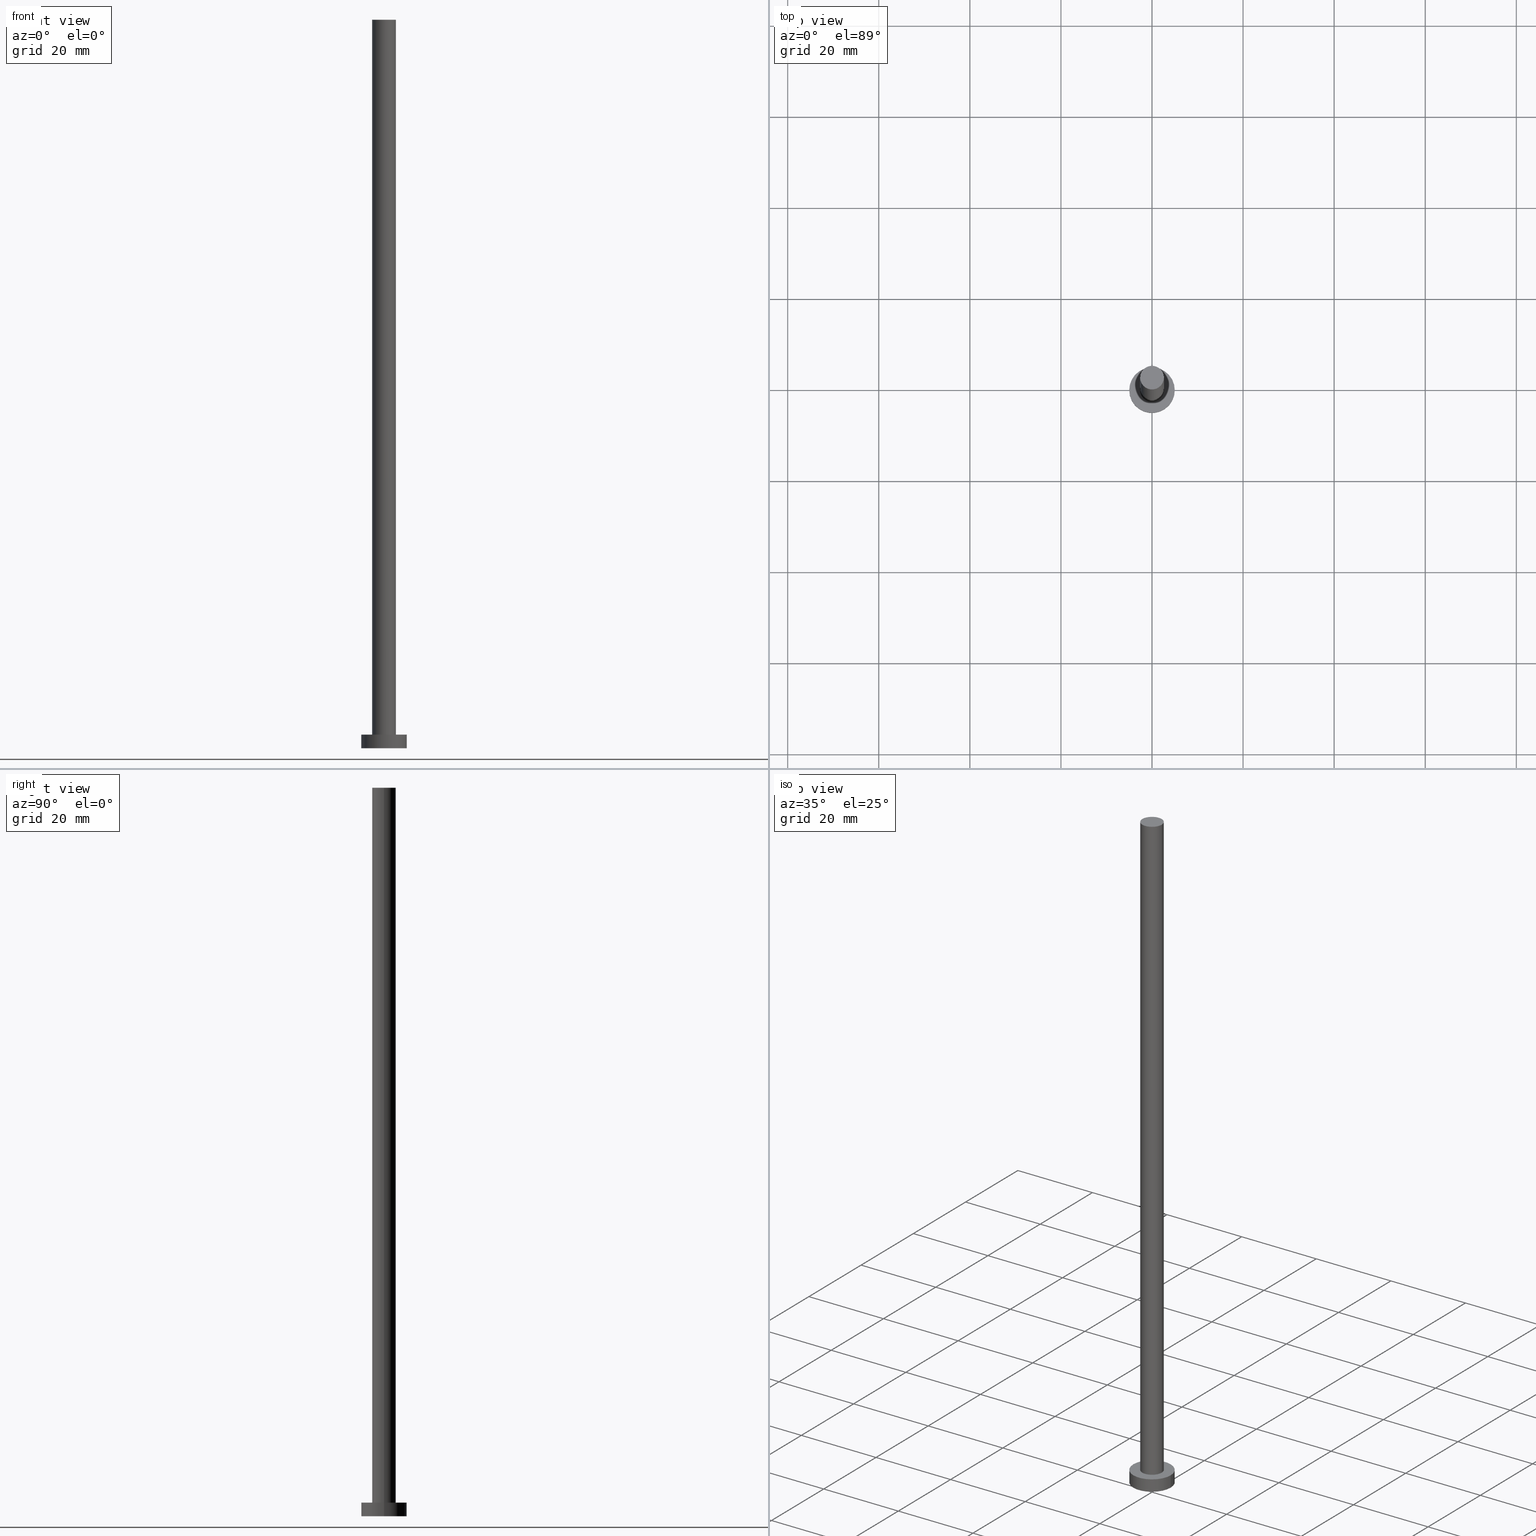
[diagram: canonical four-view strip — front | top / right | iso, engineering-drawing reading convention]
A machine part, canonical four-view strip (front | top / right | iso — engineering-drawing reading convention). The complete STEP part file that produces these views, byte-faithful:
ISO-10303-21;
HEADER;
FILE_DESCRIPTION (( 'STEP AP203' ),
    '1' );
FILE_NAME ('fc25.STEP',
    '2023-02-13T14:35:40',
    ( '' ),
    ( '' ),
    'SwSTEP 2.0',
    'SolidWorks 2019',
    '' );
FILE_SCHEMA (( 'CONFIG_CONTROL_DESIGN' ));
ENDSEC;

DATA;
#1 = PERSON_AND_ORGANIZATION_ROLE ( 'design_owner' ) ;
#2 = CARTESIAN_POINT ( 'NONE',  ( 0.000000000000000000, 0.000000000000000000, 0.000000000000000000 ) ) ;
#3 = ORIENTED_EDGE ( 'NONE', *, *, #229, .F. ) ;
#4 = DIRECTION ( 'NONE',  ( 1.000000000000000000, 0.000000000000000000, -0.000000000000000000 ) ) ;
#5 = ORIENTED_EDGE ( 'NONE', *, *, #202, .T. ) ;
#6 = UNCERTAINTY_MEASURE_WITH_UNIT (LENGTH_MEASURE( 1.000000000000000082E-05 ), #20, 'distance_accuracy_value', 'NONE');
#7 = PLANE ( 'NONE',  #103 ) ;
#8 = VERTEX_POINT ( 'NONE', #193 ) ;
#9 = APPROVAL_DATE_TIME ( #239, #188 ) ;
#10 = PERSON_AND_ORGANIZATION ( #29, #247 ) ;
#11 = AXIS2_PLACEMENT_3D ( 'NONE', #76, #141, #120 ) ;
#12 = CIRCLE ( 'NONE', #118, 5.000000000000000000 ) ;
#13 = PERSON_AND_ORGANIZATION_ROLE ( 'creator' ) ;
#14 = EDGE_CURVE ( 'NONE', #143, #19, #133, .T. ) ;
#15 = APPLICATION_PROTOCOL_DEFINITION ( 'international standard', 'config_control_design', 1994, #125 ) ;
#16 =( NAMED_UNIT ( * ) SI_UNIT ( $, .STERADIAN. ) SOLID_ANGLE_UNIT ( ) );
#17 = AXIS2_PLACEMENT_3D ( 'NONE', #28, #228, #213 ) ;
#18 = EDGE_LOOP ( 'NONE', ( #82, #58, #69, #230 ) ) ;
#19 = VERTEX_POINT ( 'NONE', #23 ) ;
#20 =( LENGTH_UNIT ( ) NAMED_UNIT ( * ) SI_UNIT ( .MILLI., .METRE. ) );
#21 = ADVANCED_FACE ( 'NONE', ( #70 ), #248, .T. ) ;
#22 = AXIS2_PLACEMENT_3D ( 'NONE', #246, #181, #233 ) ;
#23 = CARTESIAN_POINT ( 'NONE',  ( -2.600000000000000089, 0.000000000000000000, 160.0000000000000000 ) ) ;
#24 = CARTESIAN_POINT ( 'NONE',  ( -5.000000000000000000, 0.000000000000000000, 3.000000000000000000 ) ) ;
#25 = FACE_OUTER_BOUND ( 'NONE', #243, .T. ) ;
#26 = DIRECTION ( 'NONE',  ( 0.000000000000000000, 0.000000000000000000, 1.000000000000000000 ) ) ;
#27 = PERSON_AND_ORGANIZATION ( #29, #247 ) ;
#28 = CARTESIAN_POINT ( 'NONE',  ( 0.000000000000000000, 0.000000000000000000, 160.0000000000000000 ) ) ;
#29 = PERSON ( 'NEUR�EN�', 'NEUR�EN�', 'NEUR�EN�', ('NEUR�EN�'), ('NEUR�EN�'), ('NEUR�EN�') ) ;
#30 = AXIS2_PLACEMENT_3D ( 'NONE', #207, #105, #234 ) ;
#31 = APPROVAL_DATE_TIME ( #253, #138 ) ;
#32 = PERSON_AND_ORGANIZATION ( #29, #247 ) ;
#33 = EDGE_CURVE ( 'NONE', #19, #241, #67, .T. ) ;
#34 = AXIS2_PLACEMENT_3D ( 'NONE', #89, #128, #210 ) ;
#35 = DIRECTION ( 'NONE',  ( 0.000000000000000000, 0.000000000000000000, 1.000000000000000000 ) ) ;
#36 = CC_DESIGN_PERSON_AND_ORGANIZATION_ASSIGNMENT ( #32, #13, ( #115 ) ) ;
#37 = DIRECTION ( 'NONE',  ( 1.000000000000000000, 0.000000000000000000, 0.000000000000000000 ) ) ;
#38 = ORIENTED_EDGE ( 'NONE', *, *, #81, .F. ) ;
#39 = EDGE_LOOP ( 'NONE', ( #38, #3 ) ) ;
#40 = AXIS2_PLACEMENT_3D ( 'NONE', #250, #154, #46 ) ;
#41 = EDGE_LOOP ( 'NONE', ( #5, #140 ) ) ;
#42 = DIRECTION ( 'NONE',  ( -0.000000000000000000, -0.000000000000000000, -1.000000000000000000 ) ) ;
#43 = EDGE_LOOP ( 'NONE', ( #167, #226, #252, #223 ) ) ;
#44 = DIRECTION ( 'NONE',  ( 1.000000000000000000, 0.000000000000000000, 0.000000000000000000 ) ) ;
#45 = FACE_OUTER_BOUND ( 'NONE', #43, .T. ) ;
#46 = DIRECTION ( 'NONE',  ( 1.000000000000000000, 0.000000000000000000, -0.000000000000000000 ) ) ;
#47 = CARTESIAN_POINT ( 'NONE',  ( 0.000000000000000000, 0.000000000000000000, 3.000000000000000000 ) ) ;
#48 = APPROVAL_DATE_TIME ( #132, #91 ) ;
#49 = DATE_AND_TIME ( #212, #86 ) ;
#50 = APPROVAL_STATUS ( 'not_yet_approved' ) ;
#51 = APPLICATION_PROTOCOL_DEFINITION ( 'international standard', 'config_control_design', 1994, #139 ) ;
#52 = CC_DESIGN_PERSON_AND_ORGANIZATION_ASSIGNMENT ( #95, #74, ( #115 ) ) ;
#53 = ORIENTED_EDGE ( 'NONE', *, *, #172, .T. ) ;
#54 = AXIS2_PLACEMENT_3D ( 'NONE', #175, #219, #99 ) ;
#55 = ADVANCED_FACE ( 'NONE', ( #45 ), #88, .T. ) ;
#56 = DIRECTION ( 'NONE',  ( -0.000000000000000000, -0.000000000000000000, -1.000000000000000000 ) ) ;
#57 = VERTEX_POINT ( 'NONE', #232 ) ;
#58 = ORIENTED_EDGE ( 'NONE', *, *, #224, .F. ) ;
#59 = DIRECTION ( 'NONE',  ( 1.000000000000000000, 0.000000000000000000, 0.000000000000000000 ) ) ;
#60 = ORIENTED_EDGE ( 'NONE', *, *, #229, .T. ) ;
#61 = DIRECTION ( 'NONE',  ( 1.000000000000000000, 0.000000000000000000, 0.000000000000000000 ) ) ;
#62 = CC_DESIGN_SECURITY_CLASSIFICATION ( #186, ( #115 ) ) ;
#63 = ADVANCED_FACE ( 'NONE', ( #174, #25 ), #108, .T. ) ;
#64 = VERTEX_POINT ( 'NONE', #129 ) ;
#65 = EDGE_CURVE ( 'NONE', #64, #57, #12, .T. ) ;
#66 = APPROVAL_PERSON_ORGANIZATION ( #178, #91, #157 ) ;
#67 = LINE ( 'NONE', #134, #148 ) ;
#68 = CARTESIAN_POINT ( 'NONE',  ( 0.000000000000000000, 0.000000000000000000, 160.0000000000000000 ) ) ;
#69 = ORIENTED_EDGE ( 'NONE', *, *, #151, .T. ) ;
#70 = FACE_OUTER_BOUND ( 'NONE', #131, .T. ) ;
#71 = PERSON_AND_ORGANIZATION ( #29, #247 ) ;
#72 = COORDINATED_UNIVERSAL_TIME_OFFSET ( 1, 0, .AHEAD. ) ;
#73 = ADVANCED_FACE ( 'NONE', ( #195 ), #176, .T. ) ;
#74 = PERSON_AND_ORGANIZATION_ROLE ( 'design_supplier' ) ;
#75 = CIRCLE ( 'NONE', #96, 2.600000000000000089 ) ;
#76 = CARTESIAN_POINT ( 'NONE',  ( 0.000000000000000000, 0.000000000000000000, 160.0000000000000000 ) ) ;
#77 =( GEOMETRIC_REPRESENTATION_CONTEXT ( 3 ) GLOBAL_UNCERTAINTY_ASSIGNED_CONTEXT ( ( #6 ) ) GLOBAL_UNIT_ASSIGNED_CONTEXT ( ( #20, #122, #16 ) ) REPRESENTATION_CONTEXT ( 'NONE', 'WORKASPACE' ) );
#78 = DIRECTION ( 'NONE',  ( 0.000000000000000000, 0.000000000000000000, 1.000000000000000000 ) ) ;
#79 = ORIENTED_EDGE ( 'NONE', *, *, #81, .T. ) ;
#80 = CYLINDRICAL_SURFACE ( 'NONE', #22, 2.600000000000000089 ) ;
#81 = EDGE_CURVE ( 'NONE', #241, #147, #251, .T. ) ;
#82 = ORIENTED_EDGE ( 'NONE', *, *, #159, .F. ) ;
#83 = CIRCLE ( 'NONE', #222, 5.000000000000000000 ) ;
#84 = CARTESIAN_POINT ( 'NONE',  ( -5.000000000000000000, 0.000000000000000000, 3.000000000000000000 ) ) ;
#85 = PLANE ( 'NONE',  #127 ) ;
#86 = LOCAL_TIME ( 15, 35, 40.00000000000000000, #237 ) ;
#87 = CARTESIAN_POINT ( 'NONE',  ( 0.000000000000000000, 0.000000000000000000, 3.000000000000000000 ) ) ;
#88 = CYLINDRICAL_SURFACE ( 'NONE', #34, 5.000000000000000000 ) ;
#89 = CARTESIAN_POINT ( 'NONE',  ( 0.000000000000000000, 0.000000000000000000, 3.000000000000000000 ) ) ;
#90 = PERSON_AND_ORGANIZATION_ROLE ( 'creator' ) ;
#91 = APPROVAL ( #114, 'NEUR�EN�' ) ;
#92 = APPROVAL_STATUS ( 'not_yet_approved' ) ;
#93 = CC_DESIGN_APPROVAL ( #188, ( #113 ) ) ;
#94 = CALENDAR_DATE ( 2023, 13, 2 ) ;
#95 = PERSON_AND_ORGANIZATION ( #29, #247 ) ;
#96 = AXIS2_PLACEMENT_3D ( 'NONE', #225, #123, #59 ) ;
#97 = FACE_OUTER_BOUND ( 'NONE', #145, .T. ) ;
#98 = PRODUCT_DEFINITION_SHAPE ( 'NONE', 'NONE',  #113 ) ;
#99 = DIRECTION ( 'NONE',  ( 1.000000000000000000, 0.000000000000000000, 0.000000000000000000 ) ) ;
#100 = CC_DESIGN_APPROVAL ( #138, ( #186 ) ) ;
#101 = CC_DESIGN_APPROVAL ( #91, ( #115 ) ) ;
#102 = CARTESIAN_POINT ( 'NONE',  ( 0.000000000000000000, 0.000000000000000000, 3.000000000000000000 ) ) ;
#103 = AXIS2_PLACEMENT_3D ( 'NONE', #144, #35, #221 ) ;
#104 = DIRECTION ( 'NONE',  ( -0.000000000000000000, -0.000000000000000000, -1.000000000000000000 ) ) ;
#105 = DIRECTION ( 'NONE',  ( -0.000000000000000000, -0.000000000000000000, -1.000000000000000000 ) ) ;
#106 = CC_DESIGN_DATE_AND_TIME_ASSIGNMENT ( #196, #198, ( #113 ) ) ;
#107 = CARTESIAN_POINT ( 'NONE',  ( 0.000000000000000000, 0.000000000000000000, 3.000000000000000000 ) ) ;
#108 = PLANE ( 'NONE',  #40 ) ;
#109 = ADVANCED_BREP_SHAPE_REPRESENTATION ( 'fc25', ( #117, #54 ), #77 ) ;
#110 = DIRECTION ( 'NONE',  ( 1.000000000000000000, 0.000000000000000000, 0.000000000000000000 ) ) ;
#111 = APPROVAL_ROLE ( '' ) ;
#112 = SHAPE_DEFINITION_REPRESENTATION ( #98, #109 ) ;
#113 = PRODUCT_DEFINITION ( 'NEZN�M�', '', #115, #146 ) ;
#114 = APPROVAL_STATUS ( 'not_yet_approved' ) ;
#115 = PRODUCT_DEFINITION_FORMATION_WITH_SPECIFIED_SOURCE ( 'LIBOVOLN�', '', #217, .NOT_KNOWN. ) ;
#116 = APPROVAL_ROLE ( '' ) ;
#117 = MANIFOLD_SOLID_BREP ( 'P�idat vysunut�m3', #240 ) ;
#118 = AXIS2_PLACEMENT_3D ( 'NONE', #211, #26, #110 ) ;
#119 = CC_DESIGN_PERSON_AND_ORGANIZATION_ASSIGNMENT ( #214, #160, ( #186 ) ) ;
#120 = DIRECTION ( 'NONE',  ( 1.000000000000000000, 0.000000000000000000, 0.000000000000000000 ) ) ;
#121 = LOCAL_TIME ( 15, 35, 40.00000000000000000, #136 ) ;
#122 =( NAMED_UNIT ( * ) PLANE_ANGLE_UNIT ( ) SI_UNIT ( $, .RADIAN. ) );
#123 = DIRECTION ( 'NONE',  ( 0.000000000000000000, 0.000000000000000000, 1.000000000000000000 ) ) ;
#124 = VERTEX_POINT ( 'NONE', #84 ) ;
#125 = APPLICATION_CONTEXT ( 'configuration controlled 3d designs of mechanical parts and assemblies' ) ;
#126 = LINE ( 'NONE', #24, #203 ) ;
#127 = AXIS2_PLACEMENT_3D ( 'NONE', #68, #244, #4 ) ;
#128 = DIRECTION ( 'NONE',  ( -0.000000000000000000, -0.000000000000000000, -1.000000000000000000 ) ) ;
#129 = CARTESIAN_POINT ( 'NONE',  ( 5.000000000000000000, 6.123233995736766282E-16, 0.000000000000000000 ) ) ;
#130 = FACE_OUTER_BOUND ( 'NONE', #156, .T. ) ;
#131 = EDGE_LOOP ( 'NONE', ( #245, #53, #60, #206 ) ) ;
#132 = DATE_AND_TIME ( #94, #153 ) ;
#133 = CIRCLE ( 'NONE', #17, 2.600000000000000089 ) ;
#134 = CARTESIAN_POINT ( 'NONE',  ( -2.600000000000000089, 0.000000000000000000, 160.0000000000000000 ) ) ;
#135 = DATE_TIME_ROLE ( 'classification_date' ) ;
#136 = COORDINATED_UNIVERSAL_TIME_OFFSET ( 1, 0, .AHEAD. ) ;
#137 = PRODUCT_RELATED_PRODUCT_CATEGORY ( 'detail', '', ( #217 ) ) ;
#138 = APPROVAL ( #50, 'NEUR�EN�' ) ;
#139 = APPLICATION_CONTEXT ( 'configuration controlled 3d designs of mechanical parts and assemblies' ) ;
#140 = ORIENTED_EDGE ( 'NONE', *, *, #14, .T. ) ;
#141 = DIRECTION ( 'NONE',  ( 0.000000000000000000, 0.000000000000000000, 1.000000000000000000 ) ) ;
#142 = CC_DESIGN_DATE_AND_TIME_ASSIGNMENT ( #49, #135, ( #186 ) ) ;
#143 = VERTEX_POINT ( 'NONE', #173 ) ;
#144 = CARTESIAN_POINT ( 'NONE',  ( 0.000000000000000000, 0.000000000000000000, 0.000000000000000000 ) ) ;
#145 = EDGE_LOOP ( 'NONE', ( #191, #164, #169, #79 ) ) ;
#146 = DESIGN_CONTEXT ( 'detailed design', #139, 'design' ) ;
#147 = VERTEX_POINT ( 'NONE', #187 ) ;
#148 = VECTOR ( 'NONE', #152, 1000.000000000000000 ) ;
#149 = DIRECTION ( 'NONE',  ( 0.000000000000000000, 0.000000000000000000, 1.000000000000000000 ) ) ;
#150 = ORIENTED_EDGE ( 'NONE', *, *, #215, .F. ) ;
#151 = EDGE_CURVE ( 'NONE', #124, #57, #126, .T. ) ;
#152 = DIRECTION ( 'NONE',  ( -0.000000000000000000, -0.000000000000000000, -1.000000000000000000 ) ) ;
#153 = LOCAL_TIME ( 15, 35, 40.00000000000000000, #180 ) ;
#154 = DIRECTION ( 'NONE',  ( 0.000000000000000000, 0.000000000000000000, 1.000000000000000000 ) ) ;
#155 = CARTESIAN_POINT ( 'NONE',  ( 2.600000000000000089, 3.184081677783118191E-16, 160.0000000000000000 ) ) ;
#156 = EDGE_LOOP ( 'NONE', ( #150, #185 ) ) ;
#157 = APPROVAL_ROLE ( '' ) ;
#158 = SECURITY_CLASSIFICATION_LEVEL ( 'unclassified' ) ;
#159 = EDGE_CURVE ( 'NONE', #8, #64, #209, .T. ) ;
#160 = PERSON_AND_ORGANIZATION_ROLE ( 'classification_officer' ) ;
#161 = ADVANCED_FACE ( 'NONE', ( #190 ), #85, .T. ) ;
#162 = DIRECTION ( 'NONE',  ( 1.000000000000000000, 0.000000000000000000, 0.000000000000000000 ) ) ;
#163 = CIRCLE ( 'NONE', #200, 5.000000000000000000 ) ;
#164 = ORIENTED_EDGE ( 'NONE', *, *, #202, .F. ) ;
#165 = MECHANICAL_CONTEXT ( 'NONE', #125, 'mechanical' ) ;
#166 = CC_DESIGN_PERSON_AND_ORGANIZATION_ASSIGNMENT ( #10, #90, ( #113 ) ) ;
#167 = ORIENTED_EDGE ( 'NONE', *, *, #236, .F. ) ;
#168 = CARTESIAN_POINT ( 'NONE',  ( -2.600000000000000089, 0.000000000000000000, 3.000000000000000000 ) ) ;
#169 = ORIENTED_EDGE ( 'NONE', *, *, #33, .T. ) ;
#170 = AXIS2_PLACEMENT_3D ( 'NONE', #2, #149, #37 ) ;
#171 = DIRECTION ( 'NONE',  ( -0.000000000000000000, -0.000000000000000000, -1.000000000000000000 ) ) ;
#172 = EDGE_CURVE ( 'NONE', #143, #147, #184, .T. ) ;
#173 = CARTESIAN_POINT ( 'NONE',  ( 2.600000000000000089, 3.184081677783118191E-16, 160.0000000000000000 ) ) ;
#174 = FACE_BOUND ( 'NONE', #39, .T. ) ;
#175 = CARTESIAN_POINT ( 'NONE',  ( 0.000000000000000000, 0.000000000000000000, 0.000000000000000000 ) ) ;
#176 = CYLINDRICAL_SURFACE ( 'NONE', #231, 5.000000000000000000 ) ;
#177 = CALENDAR_DATE ( 2023, 13, 2 ) ;
#178 = PERSON_AND_ORGANIZATION ( #29, #247 ) ;
#179 = APPROVAL_PERSON_ORGANIZATION ( #199, #188, #116 ) ;
#180 = COORDINATED_UNIVERSAL_TIME_OFFSET ( 1, 0, .AHEAD. ) ;
#181 = DIRECTION ( 'NONE',  ( -0.000000000000000000, -0.000000000000000000, -1.000000000000000000 ) ) ;
#182 = CC_DESIGN_PERSON_AND_ORGANIZATION_ASSIGNMENT ( #71, #1, ( #217 ) ) ;
#183 = VECTOR ( 'NONE', #42, 1000.000000000000000 ) ;
#184 = LINE ( 'NONE', #155, #197 ) ;
#185 = ORIENTED_EDGE ( 'NONE', *, *, #65, .F. ) ;
#186 = SECURITY_CLASSIFICATION ( '', '', #158 ) ;
#187 = CARTESIAN_POINT ( 'NONE',  ( 2.600000000000000089, 3.184081677783118191E-16, 3.000000000000000000 ) ) ;
#188 = APPROVAL ( #92, 'NEUR�EN�' ) ;
#189 = CIRCLE ( 'NONE', #11, 2.600000000000000089 ) ;
#190 = FACE_OUTER_BOUND ( 'NONE', #41, .T. ) ;
#191 = ORIENTED_EDGE ( 'NONE', *, *, #172, .F. ) ;
#192 = DIRECTION ( 'NONE',  ( -1.000000000000000000, 0.000000000000000000, 0.000000000000000000 ) ) ;
#193 = CARTESIAN_POINT ( 'NONE',  ( 5.000000000000000000, 6.123233995736766282E-16, 3.000000000000000000 ) ) ;
#194 = ADVANCED_FACE ( 'NONE', ( #97 ), #80, .T. ) ;
#195 = FACE_OUTER_BOUND ( 'NONE', #18, .T. ) ;
#196 = DATE_AND_TIME ( #235, #242 ) ;
#197 = VECTOR ( 'NONE', #56, 1000.000000000000000 ) ;
#198 = DATE_TIME_ROLE ( 'creation_date' ) ;
#199 = PERSON_AND_ORGANIZATION ( #29, #247 ) ;
#200 = AXIS2_PLACEMENT_3D ( 'NONE', #102, #78, #61 ) ;
#201 = CALENDAR_DATE ( 2023, 13, 2 ) ;
#202 = EDGE_CURVE ( 'NONE', #19, #143, #189, .T. ) ;
#203 = VECTOR ( 'NONE', #171, 1000.000000000000000 ) ;
#204 = DIRECTION ( 'NONE',  ( 0.000000000000000000, 0.000000000000000000, 1.000000000000000000 ) ) ;
#205 = ORIENTED_EDGE ( 'NONE', *, *, #224, .T. ) ;
#206 = ORIENTED_EDGE ( 'NONE', *, *, #33, .F. ) ;
#207 = CARTESIAN_POINT ( 'NONE',  ( 0.000000000000000000, 0.000000000000000000, 160.0000000000000000 ) ) ;
#208 = LOCAL_TIME ( 15, 35, 40.00000000000000000, #72 ) ;
#209 = LINE ( 'NONE', #227, #183 ) ;
#210 = DIRECTION ( 'NONE',  ( -1.000000000000000000, 0.000000000000000000, 0.000000000000000000 ) ) ;
#211 = CARTESIAN_POINT ( 'NONE',  ( 0.000000000000000000, 0.000000000000000000, 0.000000000000000000 ) ) ;
#212 = CALENDAR_DATE ( 2023, 13, 2 ) ;
#213 = DIRECTION ( 'NONE',  ( 1.000000000000000000, 0.000000000000000000, 0.000000000000000000 ) ) ;
#214 = PERSON_AND_ORGANIZATION ( #29, #247 ) ;
#215 = EDGE_CURVE ( 'NONE', #57, #64, #218, .T. ) ;
#216 = AXIS2_PLACEMENT_3D ( 'NONE', #87, #249, #44 ) ;
#217 = PRODUCT ( 'fc25', 'fc25', '', ( #165 ) ) ;
#218 = CIRCLE ( 'NONE', #170, 5.000000000000000000 ) ;
#219 = DIRECTION ( 'NONE',  ( 0.000000000000000000, 0.000000000000000000, 1.000000000000000000 ) ) ;
#220 = ORIENTED_EDGE ( 'NONE', *, *, #236, .T. ) ;
#221 = DIRECTION ( 'NONE',  ( 1.000000000000000000, 0.000000000000000000, -0.000000000000000000 ) ) ;
#222 = AXIS2_PLACEMENT_3D ( 'NONE', #47, #204, #162 ) ;
#223 = ORIENTED_EDGE ( 'NONE', *, *, #151, .F. ) ;
#224 = EDGE_CURVE ( 'NONE', #124, #8, #163, .T. ) ;
#225 = CARTESIAN_POINT ( 'NONE',  ( 0.000000000000000000, 0.000000000000000000, 3.000000000000000000 ) ) ;
#226 = ORIENTED_EDGE ( 'NONE', *, *, #159, .T. ) ;
#227 = CARTESIAN_POINT ( 'NONE',  ( 5.000000000000000000, 6.123233995736766282E-16, 3.000000000000000000 ) ) ;
#228 = DIRECTION ( 'NONE',  ( 0.000000000000000000, 0.000000000000000000, 1.000000000000000000 ) ) ;
#229 = EDGE_CURVE ( 'NONE', #147, #241, #75, .T. ) ;
#230 = ORIENTED_EDGE ( 'NONE', *, *, #215, .T. ) ;
#231 = AXIS2_PLACEMENT_3D ( 'NONE', #107, #104, #192 ) ;
#232 = CARTESIAN_POINT ( 'NONE',  ( -5.000000000000000000, 0.000000000000000000, 0.000000000000000000 ) ) ;
#233 = DIRECTION ( 'NONE',  ( -1.000000000000000000, 0.000000000000000000, 0.000000000000000000 ) ) ;
#234 = DIRECTION ( 'NONE',  ( -1.000000000000000000, 0.000000000000000000, 0.000000000000000000 ) ) ;
#235 = CALENDAR_DATE ( 2023, 13, 2 ) ;
#236 = EDGE_CURVE ( 'NONE', #8, #124, #83, .T. ) ;
#237 = COORDINATED_UNIVERSAL_TIME_OFFSET ( 1, 0, .AHEAD. ) ;
#238 = APPROVAL_PERSON_ORGANIZATION ( #27, #138, #111 ) ;
#239 = DATE_AND_TIME ( #201, #208 ) ;
#240 = CLOSED_SHELL ( 'NONE', ( #21, #55, #73, #63, #254, #194, #161 ) ) ;
#241 = VERTEX_POINT ( 'NONE', #168 ) ;
#242 = LOCAL_TIME ( 15, 35, 40.00000000000000000, #255 ) ;
#243 = EDGE_LOOP ( 'NONE', ( #205, #220 ) ) ;
#244 = DIRECTION ( 'NONE',  ( 0.000000000000000000, 0.000000000000000000, 1.000000000000000000 ) ) ;
#245 = ORIENTED_EDGE ( 'NONE', *, *, #14, .F. ) ;
#246 = CARTESIAN_POINT ( 'NONE',  ( 0.000000000000000000, 0.000000000000000000, 160.0000000000000000 ) ) ;
#247 = ORGANIZATION ( 'NEUR�EN�', 'NEUR�EN�', '' ) ;
#248 = CYLINDRICAL_SURFACE ( 'NONE', #30, 2.600000000000000089 ) ;
#249 = DIRECTION ( 'NONE',  ( 0.000000000000000000, 0.000000000000000000, 1.000000000000000000 ) ) ;
#250 = CARTESIAN_POINT ( 'NONE',  ( 0.000000000000000000, 0.000000000000000000, 3.000000000000000000 ) ) ;
#251 = CIRCLE ( 'NONE', #216, 2.600000000000000089 ) ;
#252 = ORIENTED_EDGE ( 'NONE', *, *, #65, .T. ) ;
#253 = DATE_AND_TIME ( #177, #121 ) ;
#254 = ADVANCED_FACE ( 'NONE', ( #130 ), #7, .F. ) ;
#255 = COORDINATED_UNIVERSAL_TIME_OFFSET ( 1, 0, .AHEAD. ) ;
ENDSEC;
END-ISO-10303-21;
